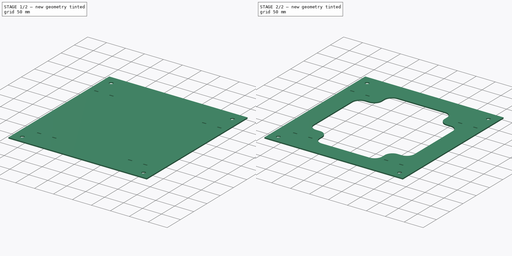
[diagram: build sequence overview — one tinted view per stage of 2, left to right]
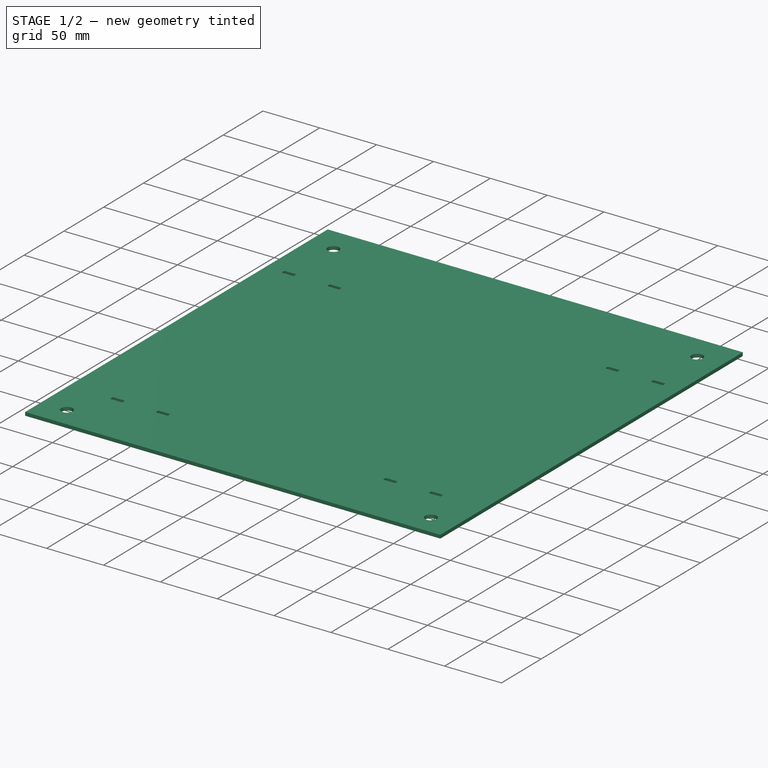
[diagram: stage 1 of 2 — iso view after this stage's code; geometry added in this stage tinted green]
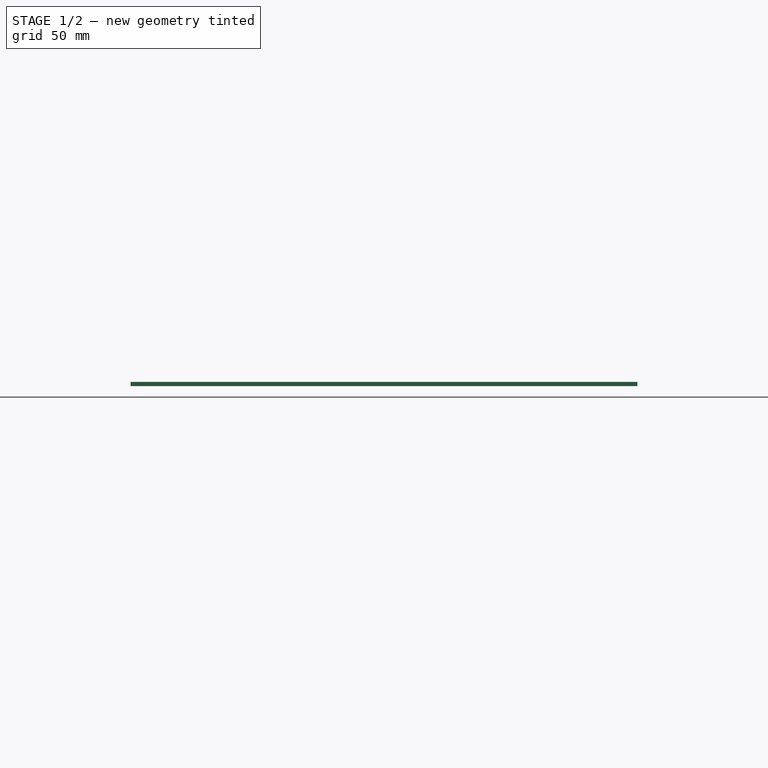
[diagram: stage 1 of 2 — front view after this stage's code; geometry added in this stage tinted green]
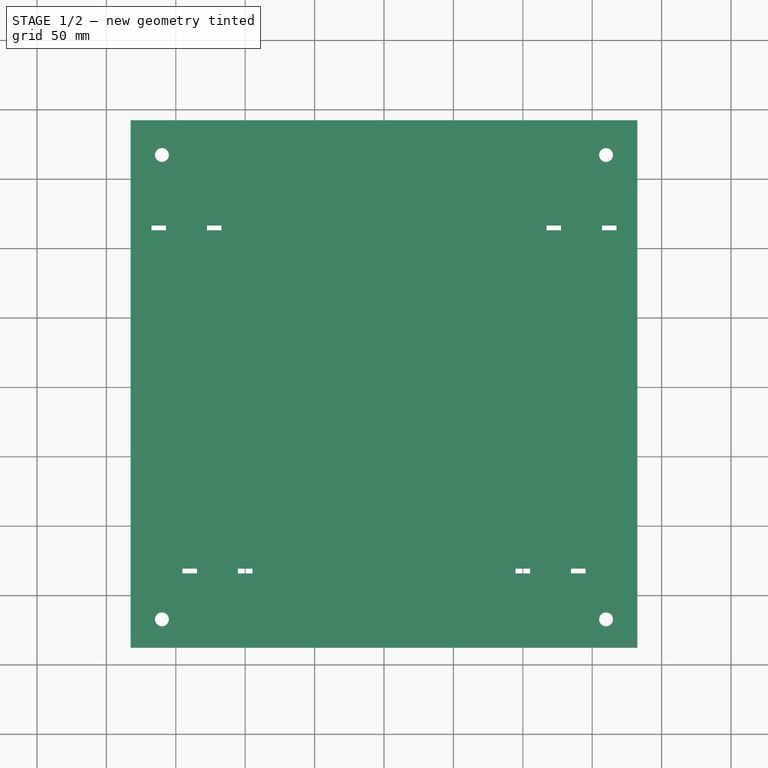
[diagram: stage 1 of 2 — top view after this stage's code; geometry added in this stage tinted green]
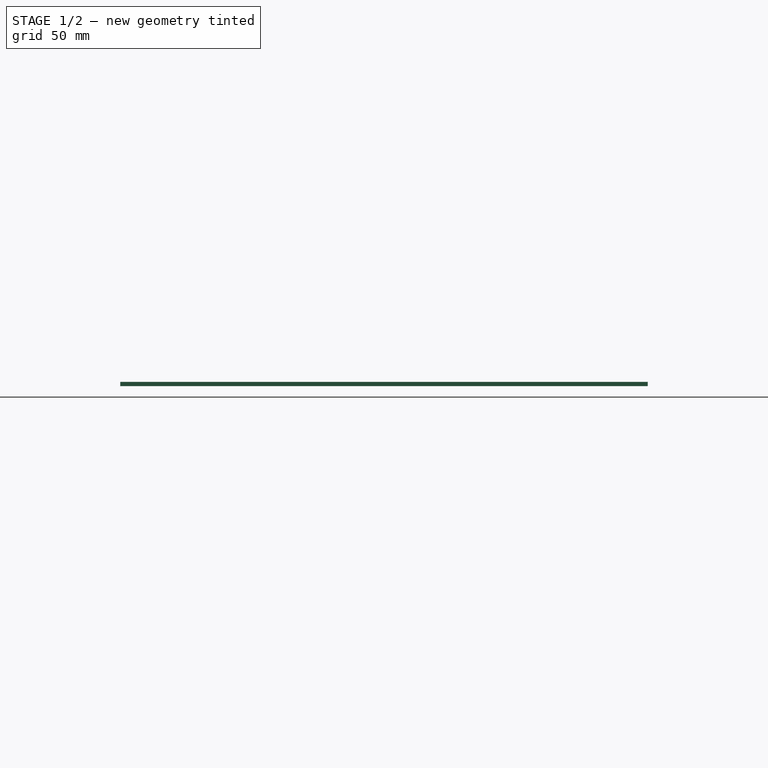
[diagram: stage 1 of 2 — right view after this stage's code; geometry added in this stage tinted green]
FCSTD DOCUMENT  (FreeCAD 0.21R33771 (Git))
Label: CD40-400L MotorController Mount
License: Creative Commons Attribution-ShareAlike 4.0
LicenseURL: https://creativecommons.org/licenses/by-sa/4.0/
objects: Sketcher::SketchObject×2, PartDesign::Pad×1, PartDesign::Pocket×1, PartDesign::Body×1
note: 7 computed .brp shape members not serialized (recipe doc carries the construction recipe); baked Part::Feature solids carry a one-line shape summary decoded from their .brp

FEATURE [Sketcher::SketchObject] Sketch
  FullyConstrained = true
  MapMode = 5
  Support = -> [XY_Plane]
  expr: .Constraints.ControllerLength = 14.96 in
  expr: .Constraints.ControllerWidth = 14.374 in
  expr: .Constraints.MotorDepth = 9.485 in
  expr: .Constraints.MotorDia = 15.94 in
  expr: Constraints[10] = 12.598 in
  expr: Constraints[11] = 13.173 in
  expr: Constraints[44] = 0.984 in
  expr: Constraints[56] = 1.75 in
  expr: Constraints[57] = 1.879 in
  expr: Constraints[69] = 3.25 in
  expr: Constraints[70] = 7.25 in
  expr: Constraints[83] = 3.3 in
  sketch-geometry (82):
    g0: LineSegment StartX=-159.995 StartY=-167.297 StartZ=0 EndX=-159.995 EndY=167.297 EndZ=0
    g1: LineSegment StartX=-159.995 StartY=167.297 StartZ=0 EndX=159.995 EndY=167.297 EndZ=0
    g2: LineSegment StartX=159.995 StartY=167.297 StartZ=0 EndX=159.995 EndY=-167.297 EndZ=0
    g3: LineSegment StartX=159.995 StartY=-167.297 StartZ=0 EndX=-159.995 EndY=-167.297 EndZ=0
    g4: GeomPoint X=0 Y=0 Z=0
    g5: Circle CenterX=-159.995 CenterY=167.297 CenterZ=0 NormalX=0 NormalY=0 NormalZ=1 AngleXU=0 Radius=5
    g6: Circle CenterX=159.995 CenterY=167.297 CenterZ=0 NormalX=0 NormalY=0 NormalZ=1 AngleXU=0 Radius=5
    g7: Circle CenterX=159.995 CenterY=-167.297 CenterZ=0 NormalX=0 NormalY=0 NormalZ=1 AngleXU=0 Radius=5
    g8: Circle CenterX=-159.995 CenterY=-167.297 CenterZ=0 NormalX=0 NormalY=0 NormalZ=1 AngleXU=0 Radius=5
    g9: LineSegment StartX=202.438 StartY=110 StartZ=0 EndX=202.438 EndY=-130.919 EndZ=0
    g10: LineSegment StartX=202.438 StartY=-130.919 StartZ=0 EndX=-202.438 EndY=-130.919 EndZ=0
    g11: LineSegment StartX=-202.438 StartY=-130.919 StartZ=0 EndX=-202.438 EndY=110 EndZ=0
    g12: LineSegment StartX=-202.438 StartY=110 StartZ=0 EndX=202.438 EndY=110 EndZ=0
    g13: GeomPoint X=0 Y=-10.4595 Z=0
    g14: LineSegment StartX=182.55 StartY=-187.693 StartZ=0 EndX=182.55 EndY=192.291 EndZ=0
    g15: LineSegment StartX=182.55 StartY=192.291 StartZ=0 EndX=-182.55 EndY=192.291 EndZ=0
    g16: LineSegment StartX=-182.55 StartY=192.291 StartZ=0 EndX=-182.55 EndY=-187.693 EndZ=0
    g17: LineSegment StartX=-182.55 StartY=-187.693 StartZ=0 EndX=182.55 EndY=-187.693 EndZ=0
    g18: GeomPoint X=0 Y=2.2987 Z=0
    g19: LineSegment StartX=22.225 StartY=-178.646 StartZ=0 EndX=22.225 EndY=-130.919 EndZ=0
    g20: LineSegment StartX=22.225 StartY=-130.919 StartZ=0 EndX=-22.225 EndY=-130.919 EndZ=0
    g21: LineSegment StartX=-22.225 StartY=-130.919 StartZ=0 EndX=-22.225 EndY=-178.646 EndZ=0
    g22: LineSegment StartX=-22.225 StartY=-178.646 StartZ=0 EndX=22.225 EndY=-178.646 EndZ=0
    g23: GeomPoint X=0 Y=-154.782 Z=0
    g24: LineSegment StartX=92.075 StartY=-213.469 StartZ=0 EndX=92.075 EndY=-130.919 EndZ=0
    g25: LineSegment StartX=92.075 StartY=-130.919 StartZ=0 EndX=-92.075 EndY=-130.919 EndZ=0
    g26: LineSegment StartX=-92.075 StartY=-130.919 StartZ=0 EndX=-92.075 EndY=-213.469 EndZ=0
    g27: LineSegment StartX=-92.075 StartY=-213.469 StartZ=0 EndX=92.075 EndY=-213.469 EndZ=0
    g28: GeomPoint X=0 Y=-172.194 Z=0
    g29: LineSegment StartX=87.5 StartY=193.82 StartZ=0 EndX=87.5 EndY=110 EndZ=0
    g30: LineSegment StartX=87.5 StartY=110 StartZ=0 EndX=-87.5 EndY=110 EndZ=0
    g31: LineSegment StartX=-87.5 StartY=110 StartZ=0 EndX=-87.5 EndY=193.82 EndZ=0
    g32: LineSegment StartX=-87.5 StartY=193.82 StartZ=0 EndX=87.5 EndY=193.82 EndZ=0
    g33: GeomPoint X=0 Y=151.91 Z=0
    g34: LineSegment StartX=-134.75 StartY=-134.169 StartZ=0 EndX=-134.75 EndY=-130.669 EndZ=0
    g35: LineSegment StartX=-134.75 StartY=-130.669 StartZ=0 EndX=-145.25 EndY=-130.669 EndZ=0
    g36: LineSegment StartX=-145.25 StartY=-130.669 StartZ=0 EndX=-145.25 EndY=-134.169 EndZ=0
    g37: LineSegment StartX=-145.25 StartY=-134.169 StartZ=0 EndX=-134.75 EndY=-134.169 EndZ=0
    g38: GeomPoint X=-140 Y=-132.419 Z=0
    g39: LineSegment StartX=-105.25 StartY=-130.669 StartZ=0 EndX=-105.25 EndY=-134.169 EndZ=0
    g40: LineSegment StartX=-105.25 StartY=-134.169 StartZ=0 EndX=-94.75 EndY=-134.169 EndZ=0
    g41: LineSegment StartX=-94.75 StartY=-134.169 StartZ=0 EndX=-94.75 EndY=-130.669 EndZ=0
    g42: LineSegment StartX=-94.75 StartY=-130.669 StartZ=0 EndX=-105.25 EndY=-130.669 EndZ=0
    g43: GeomPoint X=-100 Y=-132.419 Z=0
    g44: LineSegment StartX=94.75 StartY=-130.669 StartZ=0 EndX=94.75 EndY=-134.169 EndZ=0
    g45: LineSegment StartX=94.75 StartY=-134.169 StartZ=0 EndX=105.25 EndY=-134.169 EndZ=0
    g46: LineSegment StartX=105.25 StartY=-134.169 StartZ=0 EndX=105.25 EndY=-130.669 EndZ=0
    g47: LineSegment StartX=105.25 StartY=-130.669 StartZ=0 EndX=94.75 EndY=-130.669 EndZ=0
    g48: GeomPoint X=100 Y=-132.419 Z=0
    g49: LineSegment StartX=134.75 StartY=-130.669 StartZ=0 EndX=134.75 EndY=-134.169 EndZ=0
    g50: LineSegment StartX=134.75 StartY=-134.169 StartZ=0 EndX=145.25 EndY=-134.169 EndZ=0
    g51: LineSegment StartX=145.25 StartY=-134.169 StartZ=0 EndX=145.25 EndY=-130.669 EndZ=0
    g52: LineSegment StartX=145.25 StartY=-130.669 StartZ=0 EndX=134.75 EndY=-130.669 EndZ=0
    g53: GeomPoint X=140 Y=-132.419 Z=0
    g54: LineSegment StartX=-140 StartY=-132.419 StartZ=0 EndX=-100 EndY=-132.419 EndZ=0
    g55: LineSegment StartX=100 StartY=-132.419 StartZ=0 EndX=140 EndY=-132.419 EndZ=0
    g56: LineSegment StartX=-100 StartY=-132.419 StartZ=0 EndX=0 EndY=-132.419 EndZ=0
    g57: LineSegment StartX=0 StartY=-132.419 StartZ=0 EndX=100 EndY=-132.419 EndZ=0
    g58: LineSegment StartX=-167.55 StartY=116.547 StartZ=0 EndX=-167.55 EndY=113.047 EndZ=0
    g59: LineSegment StartX=-167.55 StartY=113.047 StartZ=0 EndX=-157.05 EndY=113.047 EndZ=0
    g60: LineSegment StartX=-157.05 StartY=113.047 StartZ=0 EndX=-157.05 EndY=116.547 EndZ=0
    g61: LineSegment StartX=-157.05 StartY=116.547 StartZ=0 EndX=-167.55 EndY=116.547 EndZ=0
    g62: GeomPoint X=-162.3 Y=114.797 Z=0
    g63: LineSegment StartX=-127.55 StartY=116.547 StartZ=0 EndX=-127.55 EndY=113.047 EndZ=0
    g64: LineSegment StartX=-127.55 StartY=113.047 StartZ=0 EndX=-117.05 EndY=113.047 EndZ=0
    g65: LineSegment StartX=-117.05 StartY=113.047 StartZ=0 EndX=-117.05 EndY=116.547 EndZ=0
    g66: LineSegment StartX=-117.05 StartY=116.547 StartZ=0 EndX=-127.55 EndY=116.547 EndZ=0
    g67: GeomPoint X=-122.3 Y=114.797 Z=0
    g68: LineSegment StartX=117.05 StartY=116.547 StartZ=0 EndX=117.05 EndY=113.047 EndZ=0
    g69: LineSegment StartX=117.05 StartY=113.047 StartZ=0 EndX=127.55 EndY=113.047 EndZ=0
    g70: LineSegment StartX=127.55 StartY=113.047 StartZ=0 EndX=127.55 EndY=116.547 EndZ=0
    g71: LineSegment StartX=127.55 StartY=116.547 StartZ=0 EndX=117.05 EndY=116.547 EndZ=0
    g72: GeomPoint X=122.3 Y=114.797 Z=0
    g73: LineSegment StartX=157.05 StartY=116.547 StartZ=0 EndX=157.05 EndY=113.047 EndZ=0
    g74: LineSegment StartX=157.05 StartY=113.047 StartZ=0 EndX=167.55 EndY=113.047 EndZ=0
    g75: LineSegment StartX=167.55 StartY=113.047 StartZ=0 EndX=167.55 EndY=116.547 EndZ=0
    g76: LineSegment StartX=167.55 StartY=116.547 StartZ=0 EndX=157.05 EndY=116.547 EndZ=0
    g77: GeomPoint X=162.3 Y=114.797 Z=0
    g78: LineSegment StartX=0 StartY=114.797 StartZ=0 EndX=-122.3 EndY=114.797 EndZ=0
    g79: LineSegment StartX=-122.3 StartY=114.797 StartZ=0 EndX=-162.3 EndY=114.797 EndZ=0
    g80: LineSegment StartX=0 StartY=114.797 StartZ=0 EndX=122.3 EndY=114.797 EndZ=0
    g81: LineSegment StartX=122.3 StartY=114.797 StartZ=0 EndX=162.3 EndY=114.797 EndZ=0
  constraints (209):
    c: Coincident(g0,g1)
    c: Coincident(g1,g2)
    c: Coincident(g2,g3)
    c: Coincident(g3,g0)
    c: Horizontal(g1)
    c: Horizontal(g3)
    c: Vertical(g0)
    c: Vertical(g2)
    c: Symmetric(g1,g0,g4)
    c: Coincident(g4,g-1)
    c: DistanceX(g1,g1) = 319.989
    c: DistanceY(g2,g2) = 334.594
    c: Coincident(g5,g0)
    c: Coincident(g6,g1)
    c: Coincident(g7,g2)
    c: Coincident(g8,g0)
    c: Equal(g5,g6)
    c: Equal(g6,g7)
    c: Equal(g7,g8)
    c: Diameter(g5) = 10
    c: Coincident(g9,g10)
    c: Coincident(g10,g11)
    c: Coincident(g11,g12)
    c: Coincident(g12,g9)
    c: Horizontal(g10)
    c: Horizontal(g12)
    c: Vertical(g9)
    c: Vertical(g11)
    c: Symmetric(g10,g9,g13)
    c: PointOnObject(g13,g-2)
    c: DistanceX(g12,g12) = 404.876  'MotorDia'
    c: DistanceY(g11,g11) = 240.919  'MotorDepth'
    c: Coincident(g14,g15)
    c: Coincident(g15,g16)
    c: Coincident(g16,g17)
    c: Coincident(g17,g14)
    c: Horizontal(g15)
    c: Horizontal(g17)
    c: Vertical(g14)
    c: Vertical(g16)
    c: Symmetric(g15,g14,g18)
    c: PointOnObject(g18,g-2)
    c: DistanceX(g15,g15) = 365.1  'ControllerWidth'
    c: DistanceY(g14,g14) = 379.984  'ControllerLength'
    c: DistanceY(g6,g14) = 24.9936
    c: Coincident(g19,g20)
    c: Coincident(g20,g21)
    c: Coincident(g21,g22)
    c: Coincident(g22,g19)
    c: Horizontal(g20)
    c: Horizontal(g22)
    c: Vertical(g19)
    c: Vertical(g21)
    c: Symmetric(g20,g19,g23)
    c: PointOnObject(g23,g-2)
    c: PointOnObject(g20,g10)
    c: DistanceX(g22,g22) = 44.45
    c: DistanceY(g19,g19) = 47.7266
    c: Coincident(g24,g25)
    c: Coincident(g25,g26)
    c: Coincident(g26,g27)
    c: Coincident(g27,g24)
    c: Horizontal(g25)
    c: Horizontal(g27)
    c: Vertical(g24)
    c: Vertical(g26)
    c: Symmetric(g25,g24,g28)
    c: PointOnObject(g28,g-2)
    c: PointOnObject(g25,g10)
    c: DistanceY(g26,g26) = 82.55
    c: DistanceX(g27,g27) = 184.15
    c: DistanceY(g4,g9) = 110
    c: Coincident(g29,g30)
    c: Coincident(g30,g31)
    c: Coincident(g31,g32)
    c: Coincident(g32,g29)
    c: Horizontal(g30)
    c: Horizontal(g32)
    c: Vertical(g29)
    c: Vertical(g31)
    c: Symmetric(g30,g29,g33)
    c: PointOnObject(g33,g-2)
    c: PointOnObject(g30,g12)
    c: DistanceY(g31,g31) = 83.82
    c: DistanceX(g32,g32) = 175
    c: Coincident(g34,g35)
    c: Coincident(g35,g36)
    c: Coincident(g36,g37)
    c: Coincident(g37,g34)
    c: Horizontal(g35)
    c: Horizontal(g37)
    c: Vertical(g34)
    c: Vertical(g36)
    c: Symmetric(g35,g34,g38)
    c: Coincident(g39,g40)
    c: Coincident(g40,g41)
    c: Coincident(g41,g42)
    c: Coincident(g42,g39)
    c: Horizontal(g40)
    c: Horizontal(g42)
    c: Vertical(g39)
    c: Vertical(g41)
    c: Symmetric(g40,g39,g43)
    c: Coincident(g44,g45)
    c: Coincident(g45,g46)
    c: Coincident(g46,g47)
    c: Coincident(g47,g44)
    c: Horizontal(g45)
    c: Horizontal(g47)
    c: Vertical(g44)
    c: Vertical(g46)
    c: Symmetric(g45,g44,g48)
    c: Coincident(g49,g50)
    c: Coincident(g50,g51)
    c: Coincident(g51,g52)
    c: Coincident(g52,g49)
    c: Horizontal(g50)
    c: Horizontal(g52)
    c: Vertical(g49)
    c: Vertical(g51)
    c: Symmetric(g50,g49,g53)
    c: Coincident(g54,g38)
    c: Coincident(g54,g43)
    c: Horizontal(g54)
    c: Coincident(g55,g48)
    c: Coincident(g55,g53)
    c: Horizontal(g55)
    c: Equal(g51,g46)
    c: Equal(g46,g41)
    c: Equal(g41,g34)
    c: Equal(g35,g42)
    c: Equal(g42,g47)
    c: Equal(g47,g52)
    c: DistanceX(g37,g37) = 10.5
    c: DistanceY(g36,g36) = 3.5
    c: Equal(g54,g55)
    c: DistanceX(g54,g54) = 40
    c: DistanceY(g38,g10) = 1.5
    c: DistanceX(g43,g4) = 100
    c: Coincident(g56,g43)
    c: PointOnObject(g56,g-2)
    c: Horizontal(g56)
    c: Coincident(g57,g56)
    c: Coincident(g57,g48)
    c: Horizontal(g57)
    c: Equal(g57,g56)
    c: Coincident(g58,g59)
    c: Coincident(g59,g60)
    c: Coincident(g60,g61)
    c: Coincident(g61,g58)
    c: Horizontal(g59)
    c: Horizontal(g61)
    c: Vertical(g58)
    c: Vertical(g60)
    c: Symmetric(g59,g58,g62)
    c: Coincident(g63,g64)
    c: Coincident(g64,g65)
    c: Coincident(g65,g66)
    c: Coincident(g66,g63)
    c: Horizontal(g64)
    c: Horizontal(g66)
    c: Vertical(g63)
    c: Vertical(g65)
    c: Symmetric(g64,g63,g67)
    c: Coincident(g68,g69)
    c: Coincident(g69,g70)
    c: Coincident(g70,g71)
    c: Coincident(g71,g68)
    c: Horizontal(g69)
    c: Horizontal(g71)
    c: Vertical(g68)
    c: Vertical(g70)
    c: Symmetric(g69,g68,g72)
    c: Coincident(g73,g74)
    c: Coincident(g74,g75)
    c: Coincident(g75,g76)
    c: Coincident(g76,g73)
    c: Horizontal(g74)
    c: Horizontal(g76)
    c: Vertical(g73)
    c: Vertical(g75)
    c: Symmetric(g74,g73,g77)
    c: Equal(g58,g63)
    c: Equal(g63,g68)
    c: Equal(g68,g73)
    c: Equal(g58,g36)
    c: Equal(g35,g61)
    c: Equal(g61,g66)
    c: Equal(g66,g71)
    c: Equal(g71,g76)
    c: PointOnObject(g78,g-2)
    c: Coincident(g78,g67)
    c: Coincident(g79,g67)
    c: Coincident(g79,g62)
    c: Coincident(g80,g78)
    c: Coincident(g80,g72)
    c: Coincident(g81,g72)
    c: Coincident(g81,g77)
    c: Horizontal(g81)
    c: Horizontal(g80)
    c: Horizontal(g78)
    c: Horizontal(g79)
    c: Equal(g79,g81)
    c: DistanceX(g79,g79) = 40
    c: Equal(g78,g80)
    c: DistanceX(g15,g58) = 15
    c: DistanceY(g58,g15) = 79.2436
    c: DistanceY(g11,g58) = 3.0471
    c: DistanceY(g58,g5) = 54.25
FEATURE [PartDesign::Pad] Pad
  Direction = (0,0,1)
  Length = 3
  Length2 = 10
  Profile = -> Sketch
  ReferenceAxis = -> Sketch [N_Axis]
  Type = 0
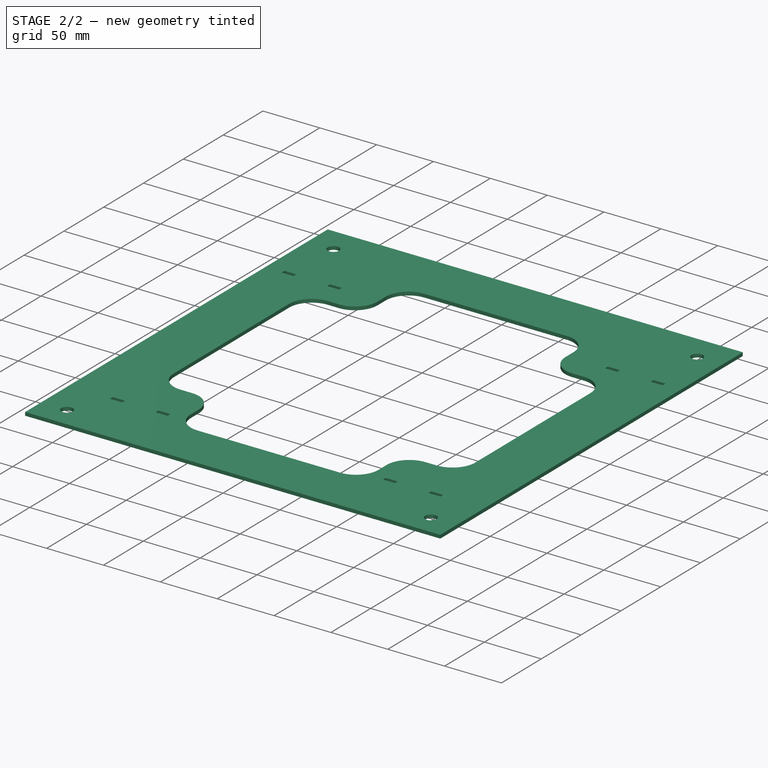
[diagram: stage 2 of 2 — iso view after this stage's code; geometry added in this stage tinted green]
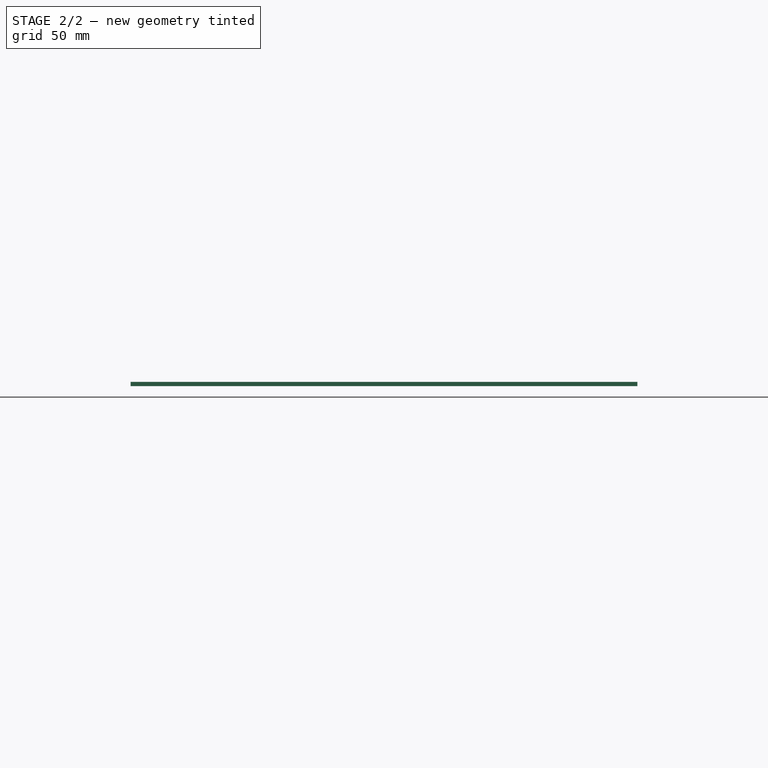
[diagram: stage 2 of 2 — front view after this stage's code; geometry added in this stage tinted green]
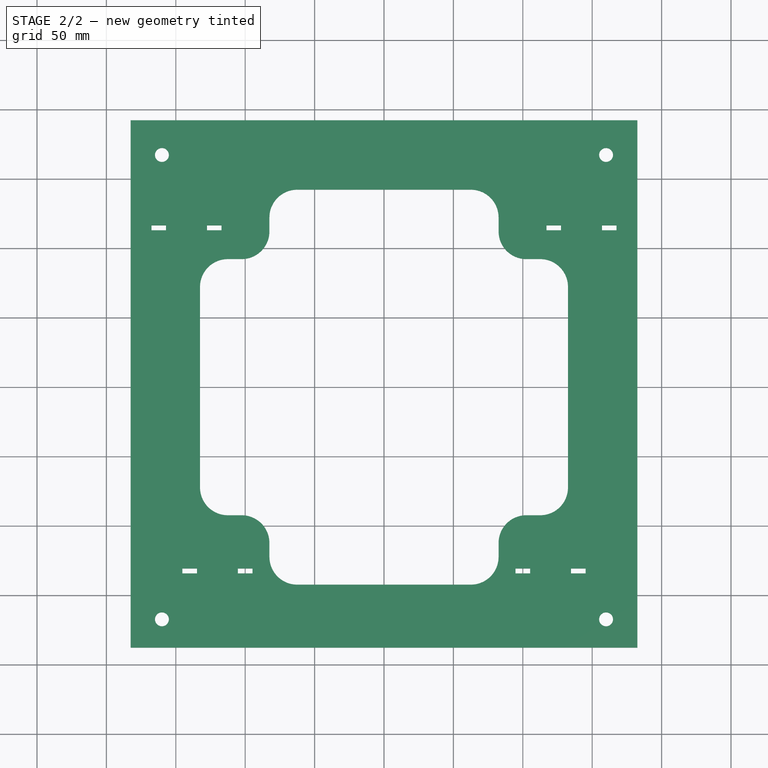
[diagram: stage 2 of 2 — top view after this stage's code; geometry added in this stage tinted green]
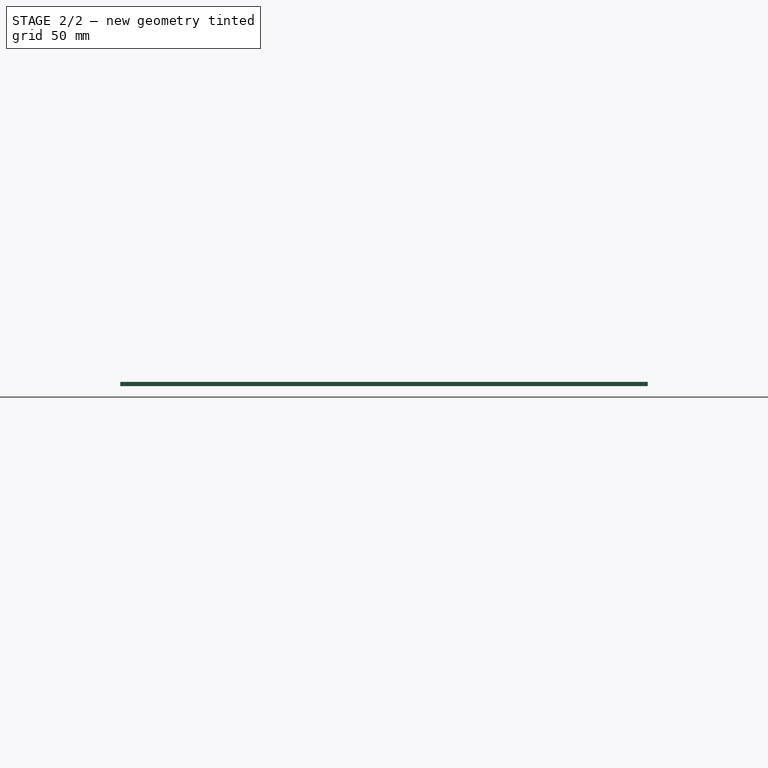
[diagram: stage 2 of 2 — right view after this stage's code; geometry added in this stage tinted green]
FEATURE [Sketcher::SketchObject] Sketch001
  ExternalGeometry = -> [Pad]
  FullyConstrained = false
  MapMode = 5
  Support = -> [XY_Plane]
  sketch-geometry (59):
    g0: LineSegment StartX=0 StartY=142.291 StartZ=0 EndX=-62.5498 EndY=142.291 EndZ=0
    g1: LineSegment StartX=-132.55 StartY=0 StartZ=0 EndX=-132.55 EndY=72.2907 EndZ=0
    g2: ArcOfCircle CenterX=-112.55 CenterY=72.2907 CenterZ=0 NormalX=0 NormalY=0 NormalZ=1 AngleXU=0 Radius=20 StartAngle=1.5708 EndAngle=3.14159
    g3: LineSegment StartX=-112.55 StartY=92.2907 StartZ=0 EndX=-102.55 EndY=92.2907 EndZ=0
    g4: LineSegment StartX=-112.55 StartY=92.2907 StartZ=0 EndX=-112.55 EndY=72.2907 EndZ=0
    g5: LineSegment StartX=-112.55 StartY=72.2907 StartZ=0 EndX=-132.55 EndY=72.2907 EndZ=0
    g6: LineSegment StartX=-102.55 StartY=92.2907 StartZ=0 EndX=-102.55 EndY=112.291 EndZ=0
    g7: LineSegment StartX=-102.55 StartY=112.291 StartZ=0 EndX=-82.5498 EndY=112.291 EndZ=0
    g8: LineSegment StartX=-62.5498 StartY=142.291 StartZ=0 EndX=-62.5498 EndY=122.291 EndZ=0
    g9: ArcOfCircle CenterX=-102.55 CenterY=112.291 CenterZ=0 NormalX=0 NormalY=0 NormalZ=1 AngleXU=0 Radius=20 StartAngle=4.71239 EndAngle=6.28319
    g10: LineSegment StartX=-62.5498 StartY=122.291 StartZ=0 EndX=-82.5498 EndY=122.291 EndZ=0
    g11: ArcOfCircle CenterX=-62.5498 CenterY=122.291 CenterZ=0 NormalX=0 NormalY=0 NormalZ=1 AngleXU=0 Radius=20 StartAngle=1.5708 EndAngle=3.14159
    g12: LineSegment StartX=-82.5498 StartY=122.291 StartZ=0 EndX=-82.5498 EndY=112.291 EndZ=0
    g13: LineSegment StartX=-132.55 StartY=0 StartZ=0 EndX=-182.55 EndY=0 EndZ=0
    g14: LineSegment StartX=0 StartY=142.291 StartZ=0 EndX=0 EndY=192.291 EndZ=0
    g15: LineSegment StartX=0 StartY=142.291 StartZ=0 EndX=62.5498 EndY=142.291 EndZ=0
    g16: ArcOfCircle CenterX=62.5498 CenterY=122.291 CenterZ=0 NormalX=0 NormalY=0 NormalZ=1 AngleXU=0 Radius=20 StartAngle=0 EndAngle=1.5708
    g17: LineSegment StartX=82.5498 StartY=122.291 StartZ=0 EndX=82.5498 EndY=112.291 EndZ=0
    g18: ArcOfCircle CenterX=102.55 CenterY=112.291 CenterZ=0 NormalX=0 NormalY=0 NormalZ=1 AngleXU=0 Radius=20 StartAngle=3.14159 EndAngle=4.71239
    g19: LineSegment StartX=112.55 StartY=92.2907 StartZ=0 EndX=102.55 EndY=92.2907 EndZ=0
    g20: ArcOfCircle CenterX=112.55 CenterY=72.2907 CenterZ=0 NormalX=0 NormalY=0 NormalZ=1 AngleXU=0 Radius=20 StartAngle=6.28319 EndAngle=7.85398
    g21: LineSegment StartX=132.55 StartY=0 StartZ=0 EndX=132.55 EndY=72.2907 EndZ=0
    g22: LineSegment StartX=-132.55 StartY=0 StartZ=0 EndX=0 EndY=0 EndZ=0
    g23: LineSegment StartX=0 StartY=0 StartZ=0 EndX=132.55 EndY=0 EndZ=0
    g24: LineSegment StartX=-112.55 StartY=72.2907 StartZ=0 EndX=0 EndY=72.2907 EndZ=0
    g25: LineSegment StartX=0 StartY=72.2907 StartZ=0 EndX=112.55 EndY=72.2907 EndZ=0
    g26: LineSegment StartX=-62.5498 StartY=122.291 StartZ=0 EndX=0 EndY=122.291 EndZ=0
    g27: LineSegment StartX=62.5498 StartY=122.291 StartZ=0 EndX=0 EndY=122.291 EndZ=0
    g28: LineSegment StartX=62.5498 StartY=122.291 StartZ=0 EndX=82.5498 EndY=122.291 EndZ=0
    g29: LineSegment StartX=112.55 StartY=72.2907 StartZ=0 EndX=132.55 EndY=72.2907 EndZ=0
    g30: LineSegment StartX=112.55 StartY=72.2907 StartZ=0 EndX=112.55 EndY=92.2907 EndZ=0
    g31: LineSegment StartX=0 StartY=-142.291 StartZ=0 EndX=-62.5498 EndY=-142.291 EndZ=0
    g32: ArcOfCircle CenterX=-112.55 CenterY=-72.2907 CenterZ=0 NormalX=0 NormalY=0 NormalZ=1 AngleXU=0 Radius=20 StartAngle=3.14159 EndAngle=4.71239
    g33: LineSegment StartX=-112.55 StartY=-92.2907 StartZ=0 EndX=-102.55 EndY=-92.2907 EndZ=0
    g34: LineSegment StartX=-112.55 StartY=-92.2907 StartZ=0 EndX=-112.55 EndY=-72.2907 EndZ=0
    g35: LineSegment StartX=-112.55 StartY=-72.2907 StartZ=0 EndX=-132.55 EndY=-72.2907 EndZ=0
    g36: LineSegment StartX=-102.55 StartY=-92.2907 StartZ=0 EndX=-102.55 EndY=-112.291 EndZ=0
    g37: LineSegment StartX=-102.55 StartY=-112.291 StartZ=0 EndX=-82.5498 EndY=-112.291 EndZ=0
    g38: LineSegment StartX=-62.5498 StartY=-142.291 StartZ=0 EndX=-62.5498 EndY=-122.291 EndZ=0
    g39: ArcOfCircle CenterX=-102.55 CenterY=-112.291 CenterZ=0 NormalX=0 NormalY=0 NormalZ=1 AngleXU=0 Radius=20 StartAngle=0 EndAngle=1.5708
    g40: LineSegment StartX=-62.5498 StartY=-122.291 StartZ=0 EndX=-82.5498 EndY=-122.291 EndZ=0
    g41: ArcOfCircle CenterX=-62.5498 CenterY=-122.291 CenterZ=0 NormalX=0 NormalY=0 NormalZ=1 AngleXU=0 Radius=20 StartAngle=3.14159 EndAngle=4.71239
    g42: LineSegment StartX=-82.5498 StartY=-122.291 StartZ=0 EndX=-82.5498 EndY=-112.291 EndZ=0
    g43: LineSegment StartX=0 StartY=-142.291 StartZ=0 EndX=62.5498 EndY=-142.291 EndZ=0
    g44: ArcOfCircle CenterX=62.5498 CenterY=-122.291 CenterZ=0 NormalX=0 NormalY=0 NormalZ=1 AngleXU=0 Radius=20 StartAngle=4.71239 EndAngle=6.28319
    g45: LineSegment StartX=82.5498 StartY=-122.291 StartZ=0 EndX=82.5498 EndY=-112.291 EndZ=0
    g46: ArcOfCircle CenterX=102.55 CenterY=-112.291 CenterZ=0 NormalX=0 NormalY=0 NormalZ=1 AngleXU=0 Radius=20 StartAngle=1.5708 EndAngle=3.14159
    g47: LineSegment StartX=112.55 StartY=-92.2907 StartZ=0 EndX=102.55 EndY=-92.2907 EndZ=0
    g48: ArcOfCircle CenterX=112.55 CenterY=-72.2907 CenterZ=0 NormalX=0 NormalY=0 NormalZ=1 AngleXU=0 Radius=20 StartAngle=4.71239 EndAngle=6.28319
    g49: LineSegment StartX=-112.55 StartY=-72.2907 StartZ=0 EndX=0 EndY=-72.2907 EndZ=0
    g50: LineSegment StartX=0 StartY=-72.2907 StartZ=0 EndX=112.55 EndY=-72.2907 EndZ=0
    g51: LineSegment StartX=-62.5498 StartY=-122.291 StartZ=0 EndX=0 EndY=-122.291 EndZ=0
    g52: LineSegment StartX=62.5498 StartY=-122.291 StartZ=0 EndX=0 EndY=-122.291 EndZ=0
    g53: LineSegment StartX=62.5498 StartY=-122.291 StartZ=0 EndX=82.5498 EndY=-122.291 EndZ=0
    g54: LineSegment StartX=112.55 StartY=-72.2907 StartZ=0 EndX=132.55 EndY=-72.2907 EndZ=0
    g55: LineSegment StartX=112.55 StartY=-72.2907 StartZ=0 EndX=112.55 EndY=-92.2907 EndZ=0
    g56: LineSegment StartX=132.55 StartY=0 StartZ=0 EndX=132.55 EndY=-72.2907 EndZ=0
    g57: LineSegment StartX=-132.55 StartY=0 StartZ=0 EndX=-132.55 EndY=-72.2907 EndZ=0
    g58: LineSegment StartX=0 StartY=0 StartZ=0 EndX=132.55 EndY=0 EndZ=0
  constraints (137):
    c: PointOnObject(g0,g-2)
    c: Horizontal(g0)
    c: PointOnObject(g1,g-1)
    c: Vertical(g1)
    c: Coincident(g2,g1)
    c: Coincident(g3,g2)
    c: Horizontal(g3)
    c: Coincident(g4,g2)
    c: Coincident(g4,g2)
    c: Vertical(g4)
    c: Coincident(g5,g2)
    c: Coincident(g5,g1)
    c: Horizontal(g5)
    c: Coincident(g6,g3)
    c: Vertical(g6)
    c: Coincident(g7,g6)
    c: Horizontal(g7)
    c: Coincident(g8,g0)
    c: Vertical(g8)
    c: Coincident(g9,g6)
    c: Coincident(g9,g3)
    c: Coincident(g9,g7)
    c: Coincident(g10,g8)
    c: Horizontal(g10)
    c: Coincident(g11,g8)
    c: Coincident(g11,g0)
    c: Coincident(g10,g11)
    c: Coincident(g12,g11)
    c: Coincident(g12,g9)
    c: Vertical(g12)
    c: Radius(g2) = 20
    c: Equal(g9,g2)
    c: Equal(g2,g11)
    c: Coincident(g13,g1)
    c: PointOnObject(g13,g-4)
    c: Horizontal(g13)
    c: DistanceX(g13,g13) = 50
    c: Coincident(g14,g0)
    c: PointOnObject(g14,g-3)
    c: Vertical(g14)
    c: Equal(g14,g13)
    c: Equal(g3,g12)
    c: DistanceY(g12,g12) = 10
    c: Horizontal(g15)
    c: Vertical(g21)
    c: Coincident(g20,g21)
    c: Coincident(g19,g20)
    c: Horizontal(g19)
    c: Coincident(g18,g19)
    c: Coincident(g16,g15)
    c: Coincident(g17,g16)
    c: Coincident(g17,g18)
    c: Vertical(g17)
    c: Radius(g20) = 20
    c: Equal(g18,g20)
    c: Equal(g20,g16)
    c: Equal(g19,g17)
    c: Equal(g15,g0)
    c: Coincident(g15,g0)
    c: Equal(g21,g1)
    c: Coincident(g22,g1)
    c: Coincident(g22,g-1)
    c: Coincident(g23,g22)
    c: Coincident(g23,g21)
    c: Horizontal(g23)
    c: Equal(g22,g23)
    c: Coincident(g24,g2)
    c: PointOnObject(g25,g-2)
    c: Coincident(g25,g20)
    c: Horizontal(g25)
    c: Coincident(g24,g25)
    c: Equal(g24,g25)
    c: Coincident(g26,g11)
    c: Horizontal(g26)
    c: PointOnObject(g26,g-2)
    c: Coincident(g27,g16)
    c: Coincident(g27,g26)
    c: Horizontal(g27)
    c: Coincident(g28,g16)
    c: Coincident(g28,g16)
    c: Horizontal(g28)
    c: Coincident(g29,g20)
    c: Coincident(g29,g20)
    c: Equal(g12,g17)
    c: Coincident(g30,g20)
    c: Coincident(g30,g19)
    c: Vertical(g30)
    c: Coincident(g32,g57)
    c: Coincident(g33,g32)
    c: Coincident(g34,g32)
    c: Coincident(g34,g32)
    c: Coincident(g35,g32)
    c: Coincident(g35,g57)
    c: Coincident(g36,g33)
    c: Coincident(g37,g36)
    c: Coincident(g38,g31)
    c: Coincident(g39,g36)
    c: Coincident(g39,g33)
    c: Coincident(g39,g37)
    c: Coincident(g40,g38)
    c: Coincident(g41,g38)
    c: Coincident(g41,g31)
    c: Coincident(g40,g41)
    c: Coincident(g42,g41)
    c: Coincident(g42,g39)
    c: Radius(g32) = 20
    c: Equal(g39,g32)
    c: Equal(g32,g41)
    c: Equal(g33,g42)
    c: Coincident(g48,g56)
    c: Coincident(g47,g48)
    c: Coincident(g46,g47)
    c: Coincident(g44,g43)
    c: Coincident(g45,g44)
    c: Coincident(g45,g46)
    c: Radius(g48) = 20
    c: Equal(g46,g48)
    c: Equal(g48,g44)
    c: Equal(g47,g45)
    c: Equal(g43,g31)
    c: Coincident(g43,g31)
    c: Equal(g56,g57)
    c: Coincident(g58,g56)
    c: Coincident(g49,g32)
    c: Coincident(g50,g48)
    c: Coincident(g49,g50)
    c: Equal(g49,g50)
    c: Coincident(g51,g41)
    c: Coincident(g52,g44)
    c: Coincident(g52,g51)
    c: Coincident(g53,g44)
    c: Coincident(g53,g44)
    c: Coincident(g54,g48)
    c: Coincident(g54,g48)
    c: Equal(g42,g45)
    c: Coincident(g55,g48)
    c: Coincident(g55,g47)
FEATURE [PartDesign::Pocket] Pocket
  BaseFeature = -> Pad
  Direction = (0,0,-1)
  Length = 5
  Length2 = 5
  Midplane = true
  Profile = -> Sketch001
  ReferenceAxis = -> Sketch001 [N_Axis]
  Type = 1
FEATURE [PartDesign::Body] Body
  Group = -> [Sketch,Pad,Sketch001,Pocket]
  Origin = -> Origin
  Tip = -> Pocket
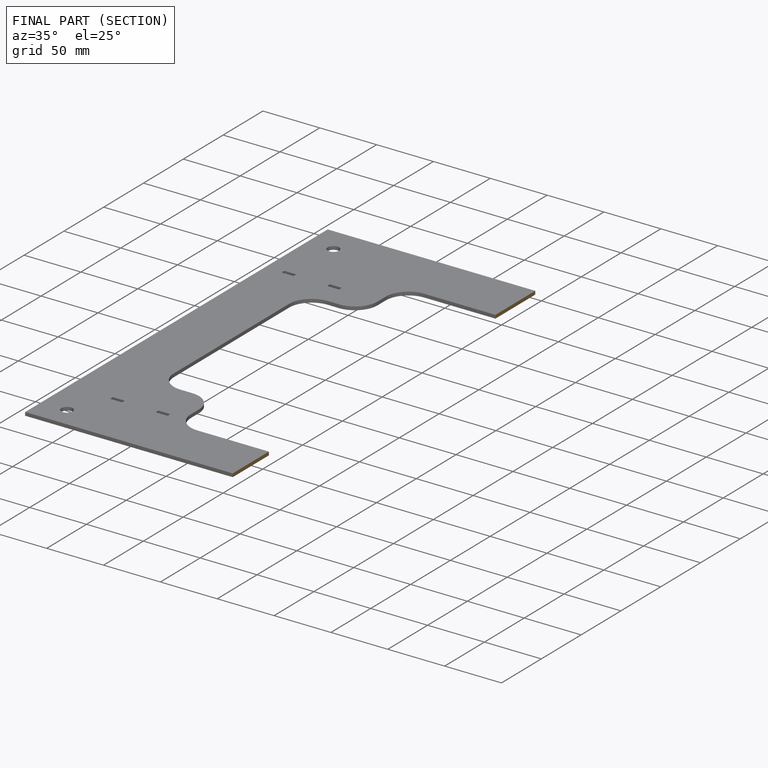
[diagram: finished part — half-section view (interior)]
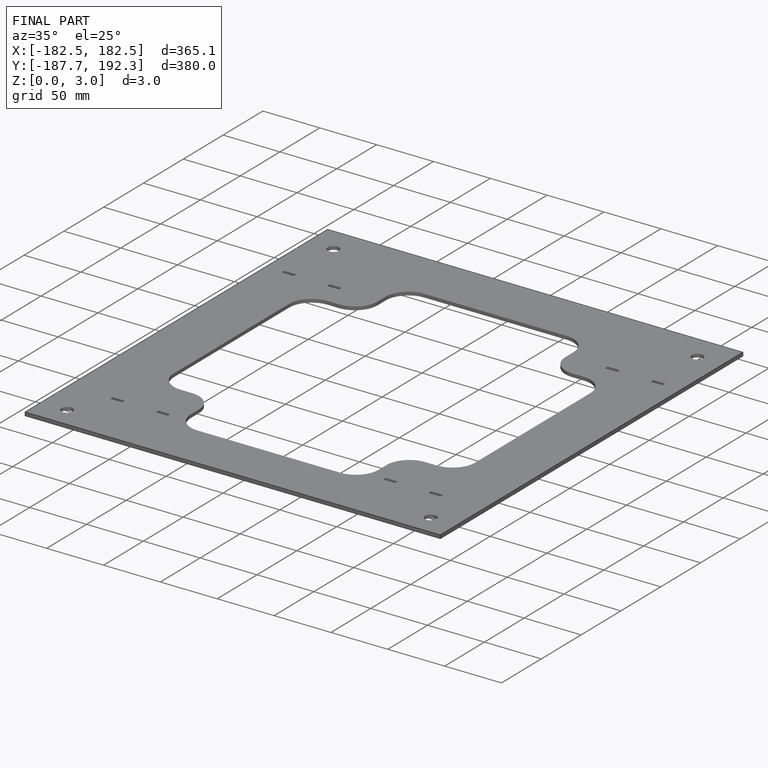
[diagram: finished part — iso view with bounding-box wireframe]
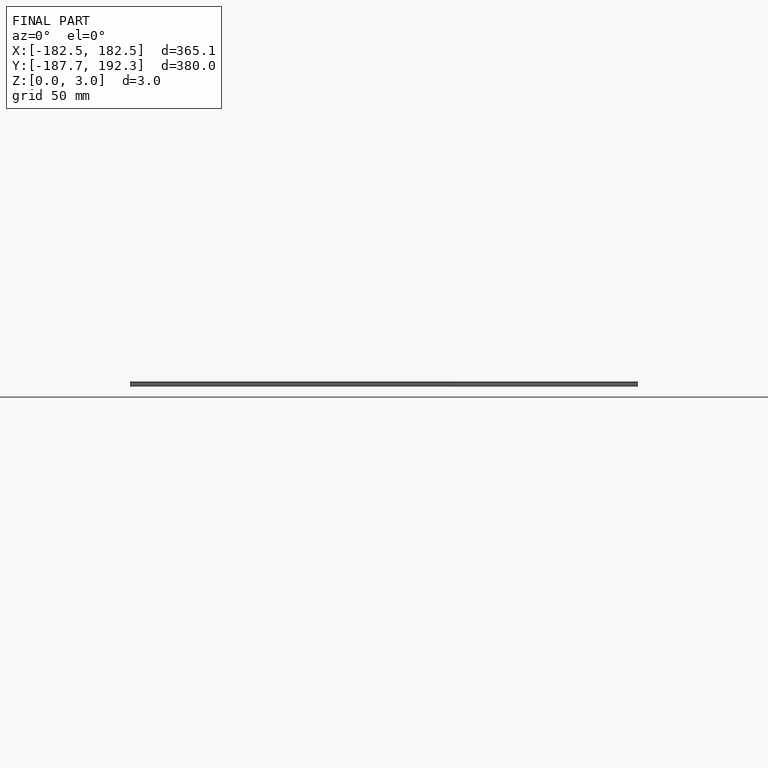
[diagram: finished part — front view with bounding-box wireframe]
